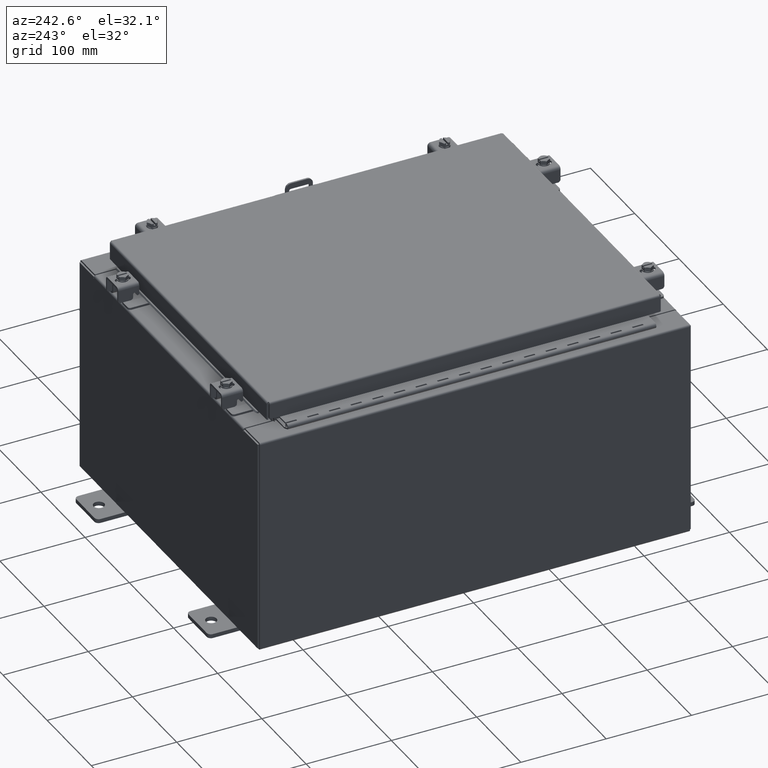
[diagram: clean part render]
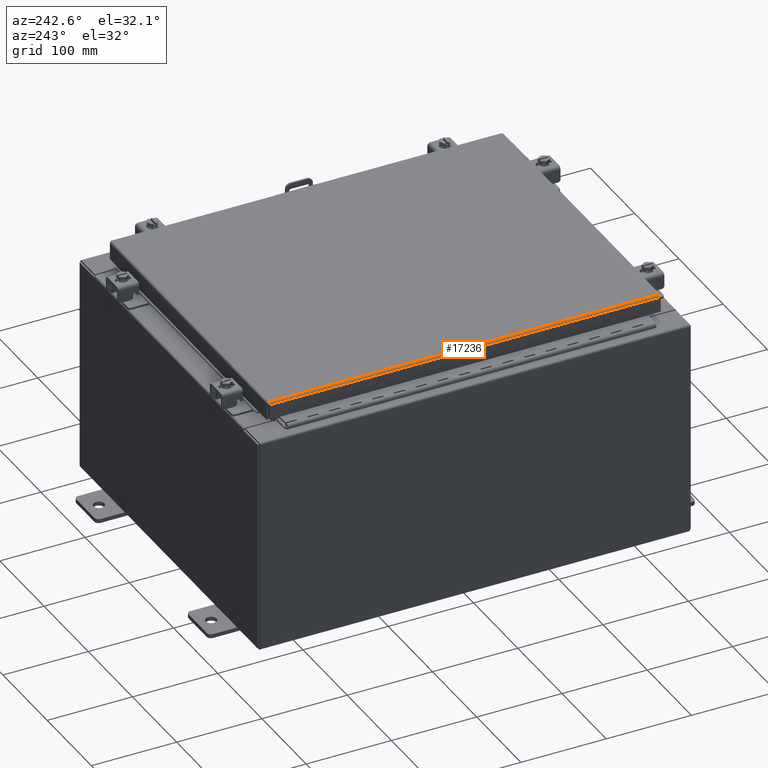
[diagram: same view with one face highlighted and labeled with its STEP entity id]
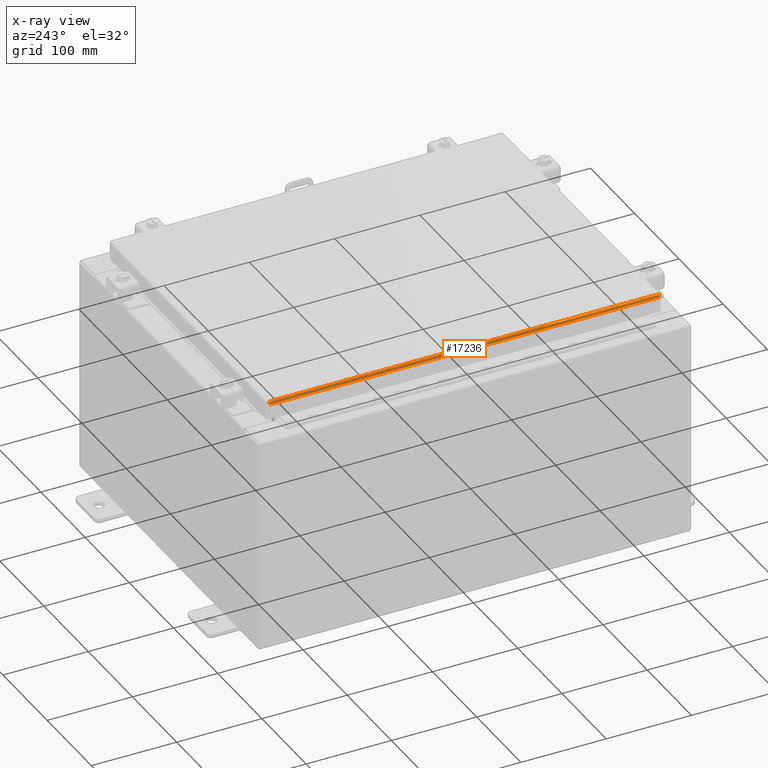
[diagram: x-ray of the same camera — body ghosted, the highlighted face saturated]
A machine part, auxiliary view. The second image highlights one B-rep face of the part: STEP entity #17236.
The next image is the same camera in x-ray: the body ghosted, the highlighted face saturated — about 0% of this face is hidden behind the body in this view.
In plain terms, the highlighted cylindrical surface (edge-blend (fillet) strip) has radius 2.2276 mm, axis along (0, 1, 0).
Its self-contained STEP definition (entity closure, byte-faithful):
#298 = EDGE_CURVE ( 'NONE', #23581, #1665, #1176, .T. ) ;
#1176 = B_SPLINE_CURVE_WITH_KNOTS ( 'NONE', 3,
 ( #16491, #4528, #21428, #15858, #29113, #1864, #10522, #29075, #17787, #19363 ),
 .UNSPECIFIED., .F., .F.,
 ( 4, 2, 2, 2, 4 ),
 ( 0.0000000000000000000, 0.2500000000000000000, 0.5000000000000000000, 0.7500000000000000000, 1.000000000000000000 ),
 .UNSPECIFIED. ) ;
#1665 = VERTEX_POINT ( 'NONE', #18353 ) ;
#1864 = CARTESIAN_POINT ( 'NONE',  ( -7.044195747341797500, 9.005824110156780200, -0.01756921792167976500 ) ) ;
#2826 = CARTESIAN_POINT ( 'NONE',  ( -7.013255289458308900, -9.006109644062711100, -0.002282596256188924700 ) ) ;
#3904 = VECTOR ( 'NONE', #29298, 39.37007874015748100 ) ;
#4528 = CARTESIAN_POINT ( 'NONE',  ( -7.077999999999998500, 9.005253042344914900, -0.07622009684500732900 ) ) ;
#5147 = CARTESIAN_POINT ( 'NONE',  ( -7.044195747341798400, -9.005824110156778400, -0.01756921792167976500 ) ) ;
#7056 = CARTESIAN_POINT ( 'NONE',  ( -6.990299999999997700, -9.006299999999997800, -2.048885995248197400E-016 ) ) ;
#7413 = CARTESIAN_POINT ( 'NONE',  ( -7.066931066258665500, -9.005538576250844000, -0.04353261542147222900 ) ) ;
#7528 = EDGE_CURVE ( 'NONE', #19793, #12463, #9047, .T. ) ;
#8837 = EDGE_LOOP ( 'NONE', ( #18681, #22073, #11667, #25281 ) ) ;
#8879 = CARTESIAN_POINT ( 'NONE',  ( -6.990299999999997700, 9.006300000000001300, -2.048885995248197400E-016 ) ) ;
#9047 = B_SPLINE_CURVE_WITH_KNOTS ( 'NONE', 3,
 ( #16341, #16450, #2826, #18736, #5147, #21000, #7413, #23295, #9698, #25590 ),
 .UNSPECIFIED., .F., .F.,
 ( 4, 2, 2, 2, 4 ),
 ( 0.0000000000000000000, 0.2500000000000000000, 0.5000000000000000000, 0.7500000000000000000, 1.000000000000000000 ),
 .UNSPECIFIED. ) ;
#9052 = EDGE_CURVE ( 'NONE', #1665, #19793, #21992, .T. ) ;
#9698 = CARTESIAN_POINT ( 'NONE',  ( -7.077999999999998500, -9.005253042344911300, -0.07622009684500735700 ) ) ;
#10522 = CARTESIAN_POINT ( 'NONE',  ( -7.034467384578526600, 9.005919288125424400, -0.01106893374133176100 ) ) ;
#11667 = ORIENTED_EDGE ( 'NONE', *, *, #29138, .T. ) ;
#12463 = VERTEX_POINT ( 'NONE', #23806 ) ;
#13213 = AXIS2_PLACEMENT_3D ( 'NONE', #17805, #15488, #19963 ) ;
#14447 = CARTESIAN_POINT ( 'NONE',  ( -7.077999999999998500, -9.093999999999999400, -0.08770000000000004200 ) ) ;
#15488 = DIRECTION ( 'NONE',  ( -0.0000000000000000000, 1.000000000000000000, -0.0000000000000000000 ) ) ;
#15858 = CARTESIAN_POINT ( 'NONE',  ( -7.066931066258662900, 9.005538576250845800, -0.04353261542147222200 ) ) ;
#16341 = CARTESIAN_POINT ( 'NONE',  ( -6.990299999999997700, -9.006299999999997800, -2.048885995248197400E-016 ) ) ;
#16450 = CARTESIAN_POINT ( 'NONE',  ( -7.001779903154991700, -9.006204822031353500, -2.043883832173860400E-016 ) ) ;
#16491 = CARTESIAN_POINT ( 'NONE',  ( -7.077999999999998500, 9.005157864376270600, -0.08770000000000004200 ) ) ;
#17236 = ADVANCED_FACE ( 'NONE', ( #27942 ), #27237, .T. ) ;
#17787 = CARTESIAN_POINT ( 'NONE',  ( -7.001779903154991700, 9.006204822031355300, -2.037547758946368100E-016 ) ) ;
#17805 = CARTESIAN_POINT ( 'NONE',  ( -6.990299999999997700, 9.006300000000001300, -0.08770000000000030500 ) ) ;
#18353 = CARTESIAN_POINT ( 'NONE',  ( -6.990299999999997700, 9.006300000000001300, -2.048885995248197400E-016 ) ) ;
#18681 = ORIENTED_EDGE ( 'NONE', *, *, #9052, .F. ) ;
#18736 = CARTESIAN_POINT ( 'NONE',  ( -7.034467384578525700, -9.005919288125420900, -0.01106893374133176100 ) ) ;
#18972 = DIRECTION ( 'NONE',  ( 3.645815397208356400E-031, -1.000000000000000000, -1.074717912135910000E-045 ) ) ;
#19363 = CARTESIAN_POINT ( 'NONE',  ( -6.990299999999997700, 9.006300000000001300, -2.048885995248197400E-016 ) ) ;
#19793 = VERTEX_POINT ( 'NONE', #7056 ) ;
#19963 = DIRECTION ( 'NONE',  ( -1.000000000000000000, 0.0000000000000000000, 3.114992011019675100E-015 ) ) ;
#20890 = VECTOR ( 'NONE', #18972, 39.37007874015748100 ) ;
#21000 = CARTESIAN_POINT ( 'NONE',  ( -7.060430782078317000, -9.005633754219486400, -0.03380425265820009900 ) ) ;
#21428 = CARTESIAN_POINT ( 'NONE',  ( -7.075717403743809100, 9.005348220313560900, -0.06474471054169118900 ) ) ;
#21597 = CARTESIAN_POINT ( 'NONE',  ( -7.077999999999998500, 9.005157864376270600, -0.08770000000000004200 ) ) ;
#21992 = LINE ( 'NONE', #8879, #3904 ) ;
#22073 = ORIENTED_EDGE ( 'NONE', *, *, #298, .F. ) ;
#23295 = CARTESIAN_POINT ( 'NONE',  ( -7.075717403743809100, -9.005348220313557300, -0.06474471054169118900 ) ) ;
#23581 = VERTEX_POINT ( 'NONE', #21597 ) ;
#23806 = CARTESIAN_POINT ( 'NONE',  ( -7.077999999999998500, -9.005157864376265300, -0.08770000000000007000 ) ) ;
#25281 = ORIENTED_EDGE ( 'NONE', *, *, #7528, .F. ) ;
#25590 = CARTESIAN_POINT ( 'NONE',  ( -7.077999999999998500, -9.005157864376265300, -0.08770000000000007000 ) ) ;
#26213 = LINE ( 'NONE', #14447, #20890 ) ;
#27237 = CYLINDRICAL_SURFACE ( 'NONE', #13213, 0.08770000000000026400 ) ;
#27942 = FACE_OUTER_BOUND ( 'NONE', #8837, .T. ) ;
#29075 = CARTESIAN_POINT ( 'NONE',  ( -7.013255289458305300, 9.006109644062711100, -0.002282596256188923800 ) ) ;
#29113 = CARTESIAN_POINT ( 'NONE',  ( -7.060430782078318800, 9.005633754219491700, -0.03380425265820009200 ) ) ;
#29138 = EDGE_CURVE ( 'NONE', #23581, #12463, #26213, .T. ) ;
#29298 = DIRECTION ( 'NONE',  ( 0.0000000000000000000, -1.000000000000000000, 0.0000000000000000000 ) ) ;